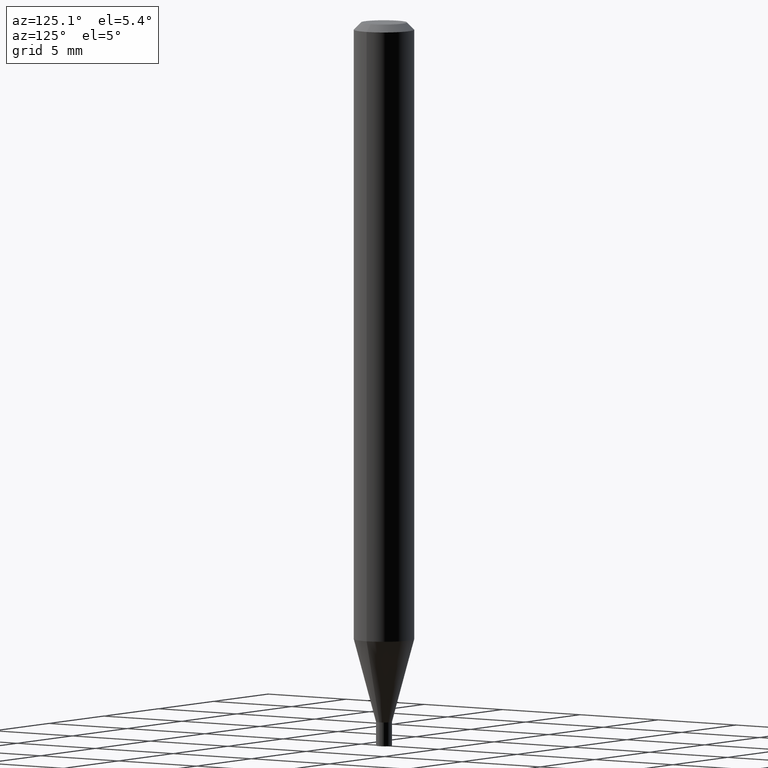
[diagram: clean part render]
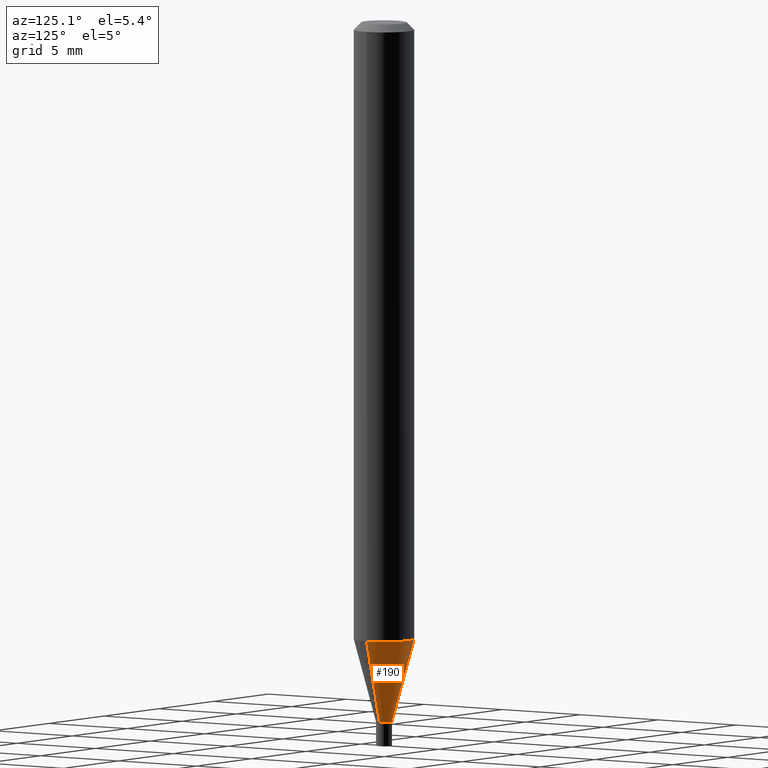
[diagram: same view with one face highlighted and labeled with its STEP entity id]
A machine part, auxiliary view. The second image highlights one B-rep face of the part: STEP entity #190.
In plain terms, the highlighted conical surface has half-angle 15 deg.
Its self-contained STEP definition (entity closure, byte-faithful):
#12 = CARTESIAN_POINT ( 'NONE',  ( -0.01649999999999965383, -4.484030429111193904E-15, -1.450499999999999901 ) ) ;
#15 = EDGE_CURVE ( 'NONE', #90, #204, #81, .T. ) ;
#16 = CARTESIAN_POINT ( 'NONE',  ( -0.01649999999999965383, -4.947154130591568350E-15, -1.450499999999999901 ) ) ;
#25 = VERTEX_POINT ( 'NONE', #43 ) ;
#41 = CARTESIAN_POINT ( 'NONE',  ( 0.01649999999999965383, -5.179612566173803826E-15, -1.450499999999999901 ) ) ;
#43 = CARTESIAN_POINT ( 'NONE',  ( -0.06250000000000000000, -4.020906727630820247E-15, -1.278825662851830858 ) ) ;
#47 = DIRECTION ( 'NONE',  ( 1.000000000000000000, -6.982962677686273021E-15, 0.000000000000000000 ) ) ;
#72 = ORIENTED_EDGE ( 'NONE', *, *, #15, .F. ) ;
#81 = LINE ( 'NONE', #41, #107 ) ;
#83 = DIRECTION ( 'NONE',  ( 1.000000000000000000, -6.982962677686273021E-15, 0.000000000000000000 ) ) ;
#89 = EDGE_CURVE ( 'NONE', #204, #25, #310, .T. ) ;
#90 = VERTEX_POINT ( 'NONE', #343 ) ;
#92 = DIRECTION ( 'NONE',  ( 1.000000000000000000, -6.982962677686262766E-15, 0.000000000000000000 ) ) ;
#107 = VECTOR ( 'NONE', #117, 39.37007874015747433 ) ;
#108 = VERTEX_POINT ( 'NONE', #12 ) ;
#112 = AXIS2_PLACEMENT_3D ( 'NONE', #163, #202, #92 ) ;
#117 = DIRECTION ( 'NONE',  ( 0.2588190451025213501, 1.565188264969621968E-15, 0.9659258262890682012 ) ) ;
#125 = CARTESIAN_POINT ( 'NONE',  ( 3.547152503371540530E-29, -5.064393681991982224E-15, -1.450499999999999901 ) ) ;
#136 = CONICAL_SURFACE ( 'NONE', #168, 0.01649999999999965383, 0.2617993877991500740 ) ;
#149 = AXIS2_PLACEMENT_3D ( 'NONE', #125, #201, #47 ) ;
#152 = EDGE_CURVE ( 'NONE', #90, #108, #438, .T. ) ;
#153 = FACE_OUTER_BOUND ( 'NONE', #211, .T. ) ;
#163 = CARTESIAN_POINT ( 'NONE',  ( 3.127328267053182321E-29, -4.464995937480882863E-15, -1.278825662851830858 ) ) ;
#168 = AXIS2_PLACEMENT_3D ( 'NONE', #297, #234, #83 ) ;
#190 = ADVANCED_FACE ( 'NONE', ( #153 ), #136, .T. ) ;
#201 = DIRECTION ( 'NONE',  ( -2.445468806185136597E-29, 3.491481338843145583E-15, 1.000000000000000000 ) ) ;
#202 = DIRECTION ( 'NONE',  ( -2.445468806185136597E-29, 3.491481338843145583E-15, 1.000000000000000000 ) ) ;
#204 = VERTEX_POINT ( 'NONE', #332 ) ;
#211 = EDGE_LOOP ( 'NONE', ( #214, #281, #419, #72 ) ) ;
#214 = ORIENTED_EDGE ( 'NONE', *, *, #152, .T. ) ;
#215 = LINE ( 'NONE', #16, #220 ) ;
#220 = VECTOR ( 'NONE', #349, 39.37007874015747433 ) ;
#234 = DIRECTION ( 'NONE',  ( -2.445468806185136597E-29, 3.491481338843145583E-15, 1.000000000000000000 ) ) ;
#281 = ORIENTED_EDGE ( 'NONE', *, *, #388, .T. ) ;
#297 = CARTESIAN_POINT ( 'NONE',  ( 3.547152503371540530E-29, -5.064393681991982224E-15, -1.450499999999999901 ) ) ;
#310 = CIRCLE ( 'NONE', #112, 0.06250000000000000000 ) ;
#332 = CARTESIAN_POINT ( 'NONE',  ( 0.06250000000000000000, -4.901431104836274532E-15, -1.278825662851830858 ) ) ;
#343 = CARTESIAN_POINT ( 'NONE',  ( 0.01649999999999965383, -5.179612566173803826E-15, -1.450499999999999901 ) ) ;
#349 = DIRECTION ( 'NONE',  ( -0.2588190451025213501, 5.211531920934551042E-15, 0.9659258262890682012 ) ) ;
#388 = EDGE_CURVE ( 'NONE', #108, #25, #215, .T. ) ;
#419 = ORIENTED_EDGE ( 'NONE', *, *, #89, .F. ) ;
#438 = CIRCLE ( 'NONE', #149, 0.01649999999999965383 ) ;